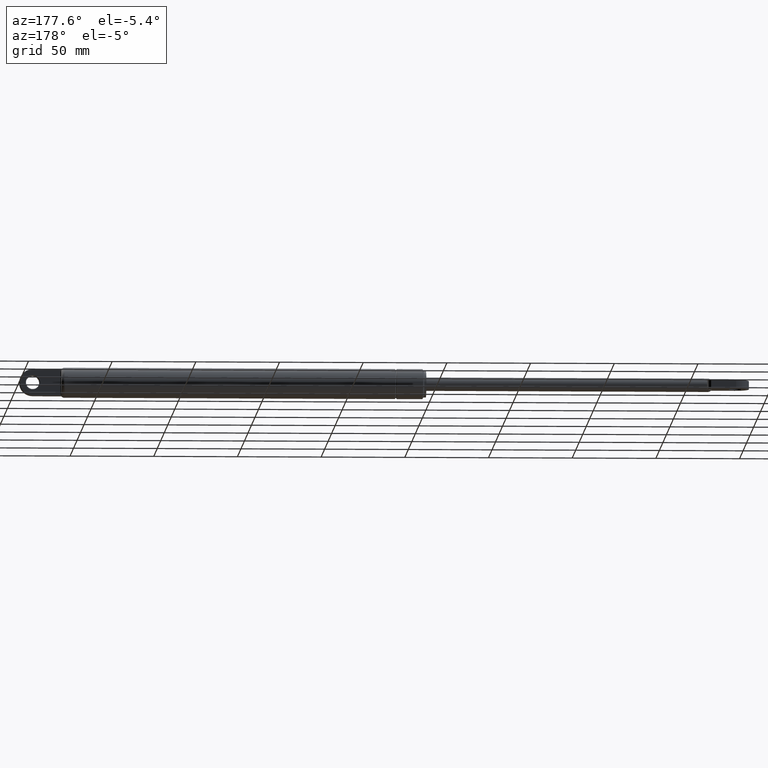
[diagram: clean part render]
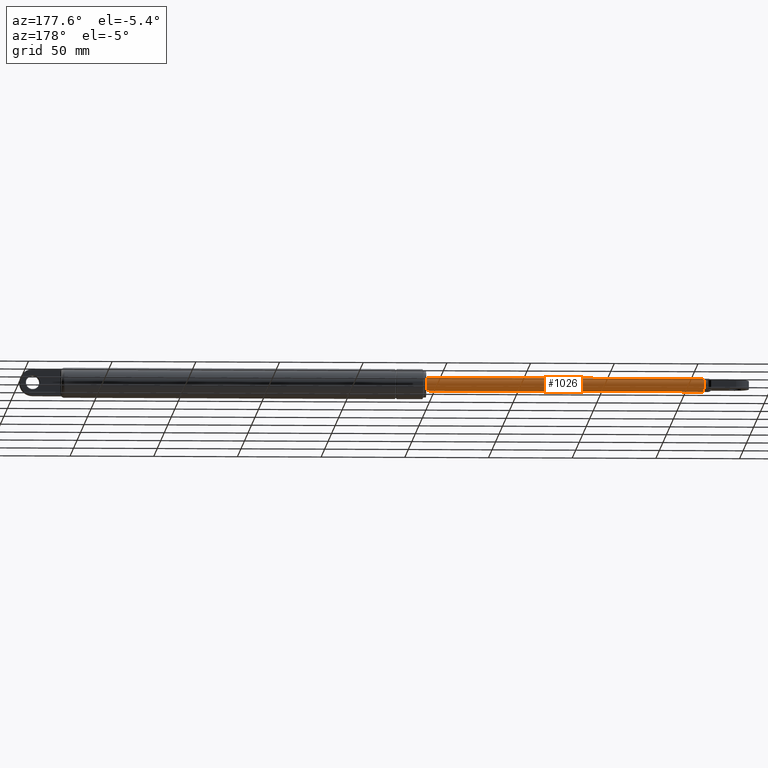
[diagram: same view with one face highlighted and labeled with its STEP entity id]
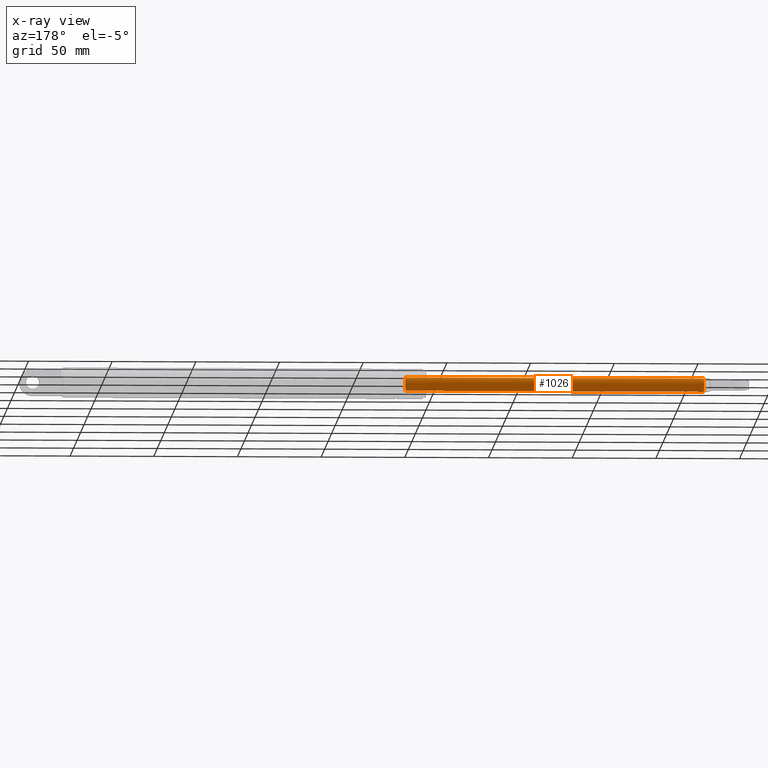
[diagram: x-ray of the same camera — body ghosted, the highlighted face saturated]
A machine part, auxiliary view. The second image highlights one B-rep face of the part: STEP entity #1026.
The next image is the same camera in x-ray: the body ghosted, the highlighted face saturated — about 0% of this face is hidden behind the body in this view.
In plain terms, the highlighted cylindrical surface (bore or boss wall) has radius 4 mm, axis along (-1, 0, -0).
Its self-contained STEP definition (entity closure, byte-faithful):
#212=CYLINDRICAL_SURFACE('',#1139,4.00000000000002);
#241=FACE_BOUND('',#386,.T.);
#297=FACE_OUTER_BOUND('',#385,.T.);
#385=EDGE_LOOP('',(#884));
#386=EDGE_LOOP('',(#885));
#449=CIRCLE('',#1126,4.00000000000002);
#456=CIRCLE('',#1140,4.);
#528=VERTEX_POINT('',#1924);
#542=VERTEX_POINT('',#1986);
#645=EDGE_CURVE('',#528,#528,#449,.T.);
#666=EDGE_CURVE('',#542,#542,#456,.T.);
#884=ORIENTED_EDGE('',*,*,#666,.T.);
#885=ORIENTED_EDGE('',*,*,#645,.T.);
#1026=ADVANCED_FACE('',(#297,#241),#212,.T.);
#1126=AXIS2_PLACEMENT_3D('',#1925,#1349,#1350);
#1139=AXIS2_PLACEMENT_3D('',#1985,#1384,#1385);
#1140=AXIS2_PLACEMENT_3D('',#1987,#1386,#1387);
#1349=DIRECTION('center_axis',(1.,0.,0.));
#1350=DIRECTION('ref_axis',(0.,0.,1.));
#1384=DIRECTION('center_axis',(-1.,0.,0.));
#1385=DIRECTION('ref_axis',(0.,0.,1.));
#1386=DIRECTION('center_axis',(-1.,0.,0.));
#1387=DIRECTION('ref_axis',(0.,0.,1.));
#1924=CARTESIAN_POINT('',(1.99999999999999,4.89858719658943E-16,-4.00000000000002));
#1925=CARTESIAN_POINT('Origin',(1.99999999999999,0.,0.));
#1985=CARTESIAN_POINT('Origin',(90.,0.,0.));
#1986=CARTESIAN_POINT('',(180.,0.,4.));
#1987=CARTESIAN_POINT('Origin',(180.,0.,0.));